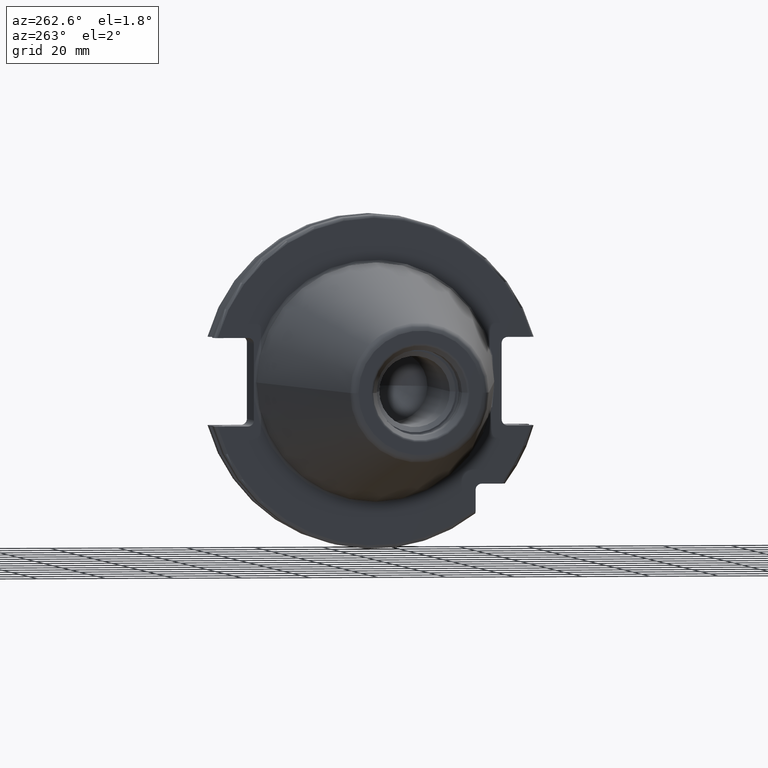
[diagram: clean part render]
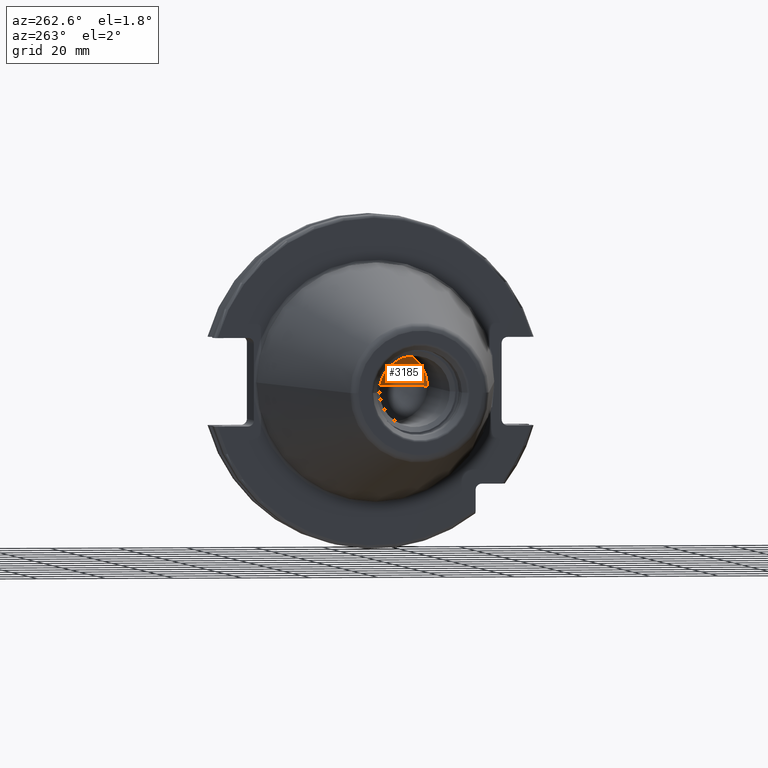
[diagram: same view with one face highlighted and labeled with its STEP entity id]
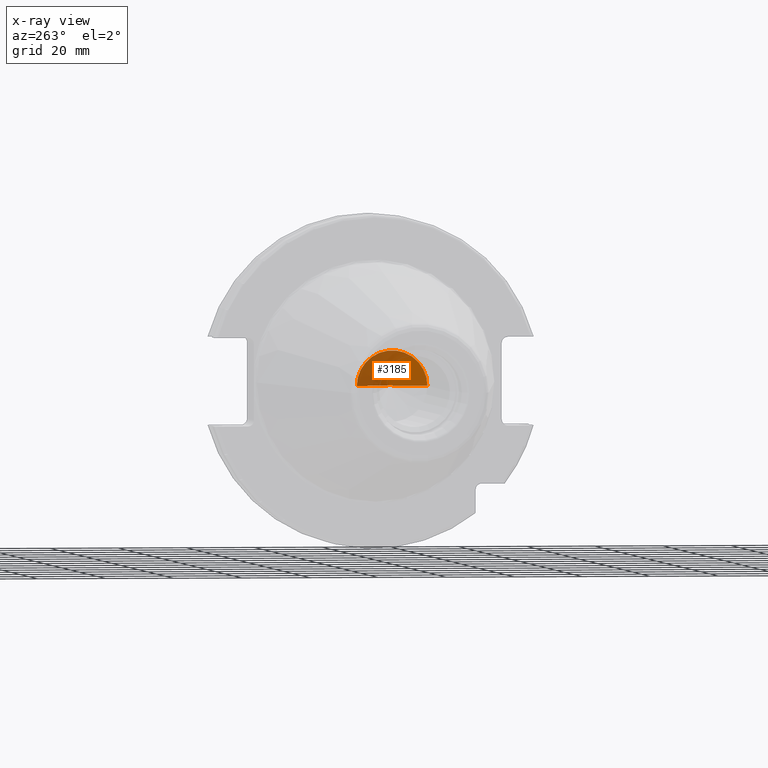
[diagram: x-ray of the same camera — body ghosted, the highlighted face saturated]
A machine part, auxiliary view. The second image highlights one B-rep face of the part: STEP entity #3185.
The next image is the same camera in x-ray: the body ghosted, the highlighted face saturated — about 48% of this face is hidden behind the body in this view.
In plain terms, the highlighted conical surface has half-angle 59 deg.
Its self-contained STEP definition (entity closure, byte-faithful):
#1385=CARTESIAN_POINT('',(-3.76E1,0.E0,0.E0));
#1386=DIRECTION('',(1.E0,0.E0,0.E0));
#1387=DIRECTION('',(0.E0,1.E0,0.E0));
#1388=AXIS2_PLACEMENT_3D('',#1385,#1386,#1387);
#1390=DIRECTION('',(-5.150380749101E-1,8.571673007021E-1,0.E0));
#1391=VECTOR('',#1390,1.210382149611E1);
#1392=CARTESIAN_POINT('',(-3.136607107759E1,0.E0,0.E0));
#1393=LINE('',#1392,#1391);
#1394=DIRECTION('',(-5.150380749101E-1,-8.571673007021E-1,0.E0));
#1395=VECTOR('',#1394,1.210382149611E1);
#1396=CARTESIAN_POINT('',(-3.136607107759E1,0.E0,0.E0));
#1397=LINE('',#1396,#1395);
#1416=CARTESIAN_POINT('',(-3.136607107759E1,0.E0,0.E0));
#1417=CARTESIAN_POINT('',(-3.76E1,1.0375E1,0.E0));
#1418=VERTEX_POINT('',#1416);
#1419=VERTEX_POINT('',#1417);
#1440=CARTESIAN_POINT('',(-3.76E1,-1.0375E1,0.E0));
#1441=VERTEX_POINT('',#1440);
#3173=CARTESIAN_POINT('',(-3.448303553879E1,0.E0,0.E0));
#3174=DIRECTION('',(-1.E0,0.E0,0.E0));
#3175=DIRECTION('',(0.E0,1.E0,0.E0));
#3176=AXIS2_PLACEMENT_3D('',#3173,#3174,#3175);
#3177=CONICAL_SURFACE('',#3176,5.1875E0,5.9E1);
#3179=ORIENTED_EDGE('',*,*,#3178,.T.);
#3180=ORIENTED_EDGE('',*,*,#3168,.T.);
#3182=ORIENTED_EDGE('',*,*,#3181,.F.);
#3183=EDGE_LOOP('',(#3179,#3180,#3182));
#3184=FACE_OUTER_BOUND('',#3183,.F.);
#3185=ADVANCED_FACE('',(#3184),#3177,.F.);
#1389=CIRCLE('',#1388,1.0375E1);
#3168=EDGE_CURVE('',#1419,#1441,#1389,.T.);
#3178=EDGE_CURVE('',#1418,#1419,#1393,.T.);
#3181=EDGE_CURVE('',#1418,#1441,#1397,.T.);